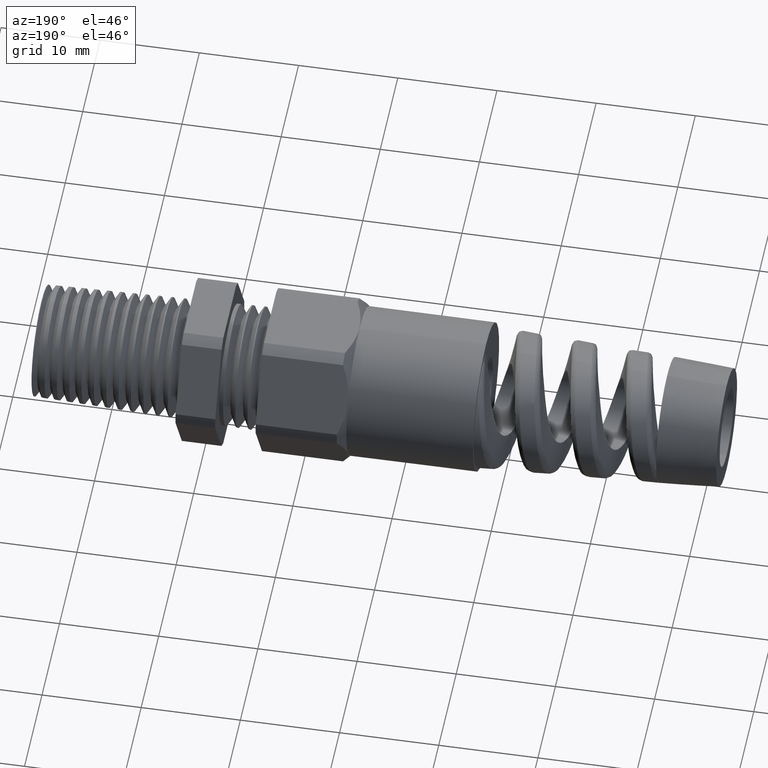
[diagram: clean part render]
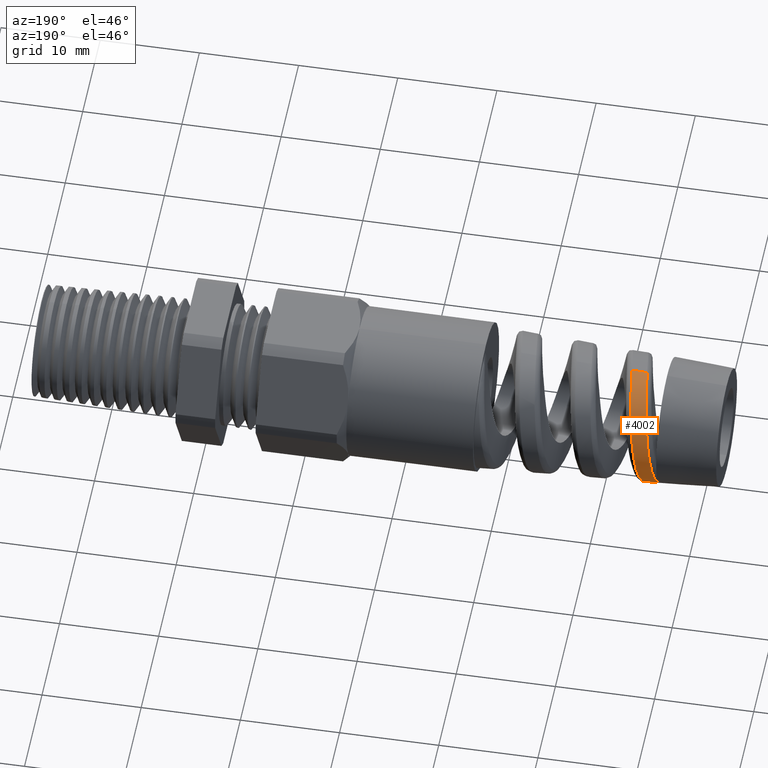
[diagram: same view with one face highlighted and labeled with its STEP entity id]
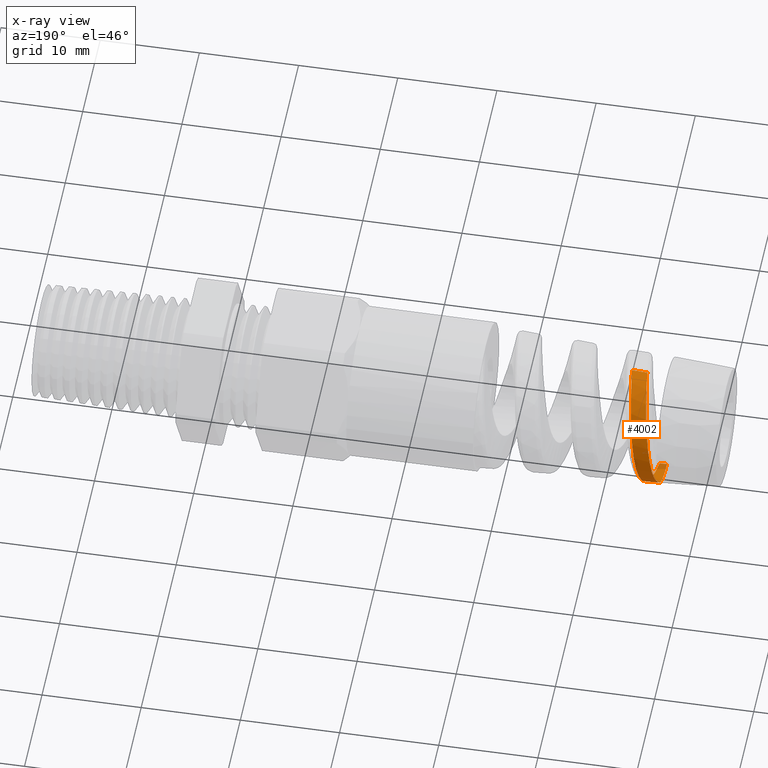
[diagram: x-ray of the same camera — body ghosted, the highlighted face saturated]
A machine part, auxiliary view. The second image highlights one B-rep face of the part: STEP entity #4002.
The next image is the same camera in x-ray: the body ghosted, the highlighted face saturated — about 2% of this face is hidden behind the body in this view.
In plain terms, the highlighted conical surface has half-angle 2.5 deg.
Its self-contained STEP definition (entity closure, byte-faithful):
#2737 = DIRECTION ( 'NONE',  ( 0.0000000000000000000, 0.0000000000000000000, -1.000000000000000000 ) ) ;
#2738 = DIRECTION ( 'NONE',  ( 1.000000000000000000, 0.0000000000000000000, 0.0000000000000000000 ) ) ;
#2739 = CARTESIAN_POINT ( 'NONE',  ( -2.203779527559055000, 0.0000000000000000000, 0.0000000000000000000 ) ) ;
#2740 = AXIS2_PLACEMENT_3D ( 'NONE', #2739, #2738, #2737 ) ;
#2741 = CIRCLE ( 'NONE', #2740, 0.2485543827799998300 ) ;
#2752 = CARTESIAN_POINT ( 'NONE',  ( -2.187213035622172600, 0.2441993029425841600, -0.05143993409245058900 ) ) ;
#2753 = CARTESIAN_POINT ( 'NONE',  ( -2.190535958967617400, 0.2380887566860709600, -0.07430208590741629900 ) ) ;
#2754 = CARTESIAN_POINT ( 'NONE',  ( -2.192184161795037500, 0.2342465710266397600, -0.08541793653908583100 ) ) ;
#2755 = CARTESIAN_POINT ( 'NONE',  ( -2.195471510791315400, 0.2250902436266462900, -0.1069139280671061700 ) ) ;
#2756 = CARTESIAN_POINT ( 'NONE',  ( -2.197113640667939000, 0.2197702627228702600, -0.1173153586273072800 ) ) ;
#2757 = CARTESIAN_POINT ( 'NONE',  ( -2.200427670845417300, 0.2076254943262758900, -0.1374100581047539000 ) ) ;
#2758 = CARTESIAN_POINT ( 'NONE',  ( -2.202104597898551400, 0.2007724287438462900, -0.1471268494720518200 ) ) ;
#2794 = CARTESIAN_POINT ( 'NONE',  ( -2.124862604434597300, -4.491469872103783600E-015, 0.2519999700550522600 ) ) ;
#2795 = CARTESIAN_POINT ( 'NONE',  ( -2.126489364894125400, 0.01168615151431172000, 0.2519289441595031800 ) ) ;
#2796 = DIRECTION ( 'NONE',  ( 0.9990482215818576900, 5.341834311772759500E-018, 0.04361938736533629800 ) ) ;
#2797 = VECTOR ( 'NONE', #2796, 39.37007874015748100 ) ;
#2798 = CARTESIAN_POINT ( 'NONE',  ( -1.139999999999999900, 3.612708057484692000E-017, 0.2949999999999999800 ) ) ;
#2799 = LINE ( 'NONE', #2798, #2797 ) ;
#2804 = CARTESIAN_POINT ( 'NONE',  ( -2.147755639327928900, 0.1527029847878234300, 0.1995490315145043400 ) ) ;
#2805 = CARTESIAN_POINT ( 'NONE',  ( -2.151032487266941700, 0.1705058947885270400, 0.1843745005458386800 ) ) ;
#2806 = CARTESIAN_POINT ( 'NONE',  ( -2.152687327551548800, 0.1789694867704847700, 0.1760740767364564800 ) ) ;
#2807 = CARTESIAN_POINT ( 'NONE',  ( -2.157631256046324900, 0.2024011599423863100, 0.1495816056616086600 ) ) ;
#2808 = CARTESIAN_POINT ( 'NONE',  ( -2.160859313518459100, 0.2152803250508847900, 0.1300952375589155600 ) ) ;
#2809 = CARTESIAN_POINT ( 'NONE',  ( -2.165806668688753200, 0.2304612323092316300, 0.09814700066606656100 ) ) ;
#2810 = CARTESIAN_POINT ( 'NONE',  ( -2.167462285368283200, 0.2347746584912769100, 0.08710725578013377200 ) ) ;
#2814 = CARTESIAN_POINT ( 'NONE',  ( -1.139999999999999900, 0.0000000000000000000, 0.0000000000000000000 ) ) ;
#2815 = AXIS2_PLACEMENT_3D ( 'NONE', #2814, #2818, #2817 ) ;
#2817 = DIRECTION ( 'NONE',  ( 0.0000000000000000000, 0.0000000000000000000, -1.000000000000000000 ) ) ;
#2818 = DIRECTION ( 'NONE',  ( 1.000000000000000000, 0.0000000000000000000, 0.0000000000000000000 ) ) ;
#2819 = CARTESIAN_POINT ( 'NONE',  ( -2.170743381754297400, 0.2417416082006667000, 0.06477778682104677600 ) ) ;
#2820 = CARTESIAN_POINT ( 'NONE',  ( -2.172380132548160000, 0.2444313493304473600, 0.05341510339804867600 ) ) ;
#2821 = CARTESIAN_POINT ( 'NONE',  ( -2.175675771031869000, 0.2482138580107974800, 0.03029579764600870400 ) ) ;
#2822 = CARTESIAN_POINT ( 'NONE',  ( -2.177347779021242300, 0.2493035139535857700, 0.01844516095598532800 ) ) ;
#2823 = CARTESIAN_POINT ( 'NONE',  ( -2.180654596613715400, 0.2497894759478132300, -0.005059584245448274300 ) ) ;
#2824 = CARTESIAN_POINT ( 'NONE',  ( -2.182291655091660200, 0.2492045519470773000, -0.01673391278558179400 ) ) ;
#2825 = CARTESIAN_POINT ( 'NONE',  ( -2.185571362247561700, 0.2464093633746419200, -0.03992400863877127600 ) ) ;
#2839 = CARTESIAN_POINT ( 'NONE',  ( -2.124862604434597300, -4.491469872103783600E-015, 0.2519999700550522600 ) ) ;
#2855 = CONICAL_SURFACE ( 'NONE', #2815, 0.2949999999999999800, 0.04363323129985853500 ) ;
#2856 = FACE_OUTER_BOUND ( 'NONE', #4032, .T. ) ;
#2857 = CARTESIAN_POINT ( 'NONE',  ( -2.128124273006445600, 0.02343772342904414800, 0.2510432488180706100 ) ) ;
#2858 = CARTESIAN_POINT ( 'NONE',  ( -2.131412621646747500, 0.04683437535083068100, 0.2476010540459129000 ) ) ;
#2859 = CARTESIAN_POINT ( 'NONE',  ( -2.133038234399847100, 0.05828279385756416500, 0.2450790113730720600 ) ) ;
#2860 = CARTESIAN_POINT ( 'NONE',  ( -2.136287425823070400, 0.08069290401940816500, 0.2384908461465274400 ) ) ;
#2861 = CARTESIAN_POINT ( 'NONE',  ( -2.137910898845151000, 0.09165457577657404300, 0.2344246113829247800 ) ) ;
#2862 = CARTESIAN_POINT ( 'NONE',  ( -2.141189865094801400, 0.1130760897160382700, 0.2247160145856096100 ) ) ;
#2863 = CARTESIAN_POINT ( 'NONE',  ( -2.142847449849460500, 0.1235403384179158000, 0.2190520701245314300 ) ) ;
#2864 = CARTESIAN_POINT ( 'NONE',  ( -2.146123843167379700, 0.1433099722695278200, 0.2064858934802839800 ) ) ;
#2876 = CARTESIAN_POINT ( 'NONE',  ( -2.064174219170769000, 7.132455621879045500E-017, 0.2546496821792660300 ) ) ;
#2881 = CARTESIAN_POINT ( 'NONE',  ( -2.203779527559055000, 0.1932692645669722700, -0.1562890673492178300 ) ) ;
#2882 = CARTESIAN_POINT ( 'NONE',  ( -2.203779527559055000, 0.1932692645669722700, -0.1562890673492178300 ) ) ;
#2883 = B_SPLINE_CURVE_WITH_KNOTS ( 'NONE', 3,
 ( #2881, #2758, #2757, #2756, #2755, #2754, #2753, #2752, #2825, #2824, #2823, #2822, #2821, #2820, #2819, #2810, #2809, #2808, #2807, #2806, #2805, #2804, #2864, #2863, #2862, #2861, #2860, #2859, #2858, #2857, #2795, #2794 ),
 .UNSPECIFIED., .F., .F.,
 ( 4, 2, 2, 2, 2, 2, 2, 2, 2, 2, 2, 2, 2, 2, 2, 4 ),
 ( 1.226634733346699300E-018, 0.0009106879238882848600, 0.001821375847776568600, 0.002732063771664852100, 0.003642751695553136000, 0.004553439619441418600, 0.005464127543329702500, 0.006374815467217986300, 0.007285503391106270200, 0.009106879238882842300, 0.01001756716277112400, 0.01092825508665940500, 0.01183894301054768700, 0.01274963093443596900, 0.01366031885832425100, 0.01457100678221253400 ),
 .UNSPECIFIED. ) ;
#2935 = LINE ( 'NONE', #2945, #2943 ) ;
#2936 = CARTESIAN_POINT ( 'NONE',  ( -2.203779527559055000, -3.043913292855725100E-017, -0.2485543827799996100 ) ) ;
#2937 = DIRECTION ( 'NONE',  ( 0.9990482215818576900, 0.0000000000000000000, -0.04361938736533629800 ) ) ;
#2943 = VECTOR ( 'NONE', #2937, 39.37007874015748100 ) ;
#2945 = CARTESIAN_POINT ( 'NONE',  ( -1.139999999999999900, 0.0000000000000000000, -0.2949999999999999800 ) ) ;
#4002 = ADVANCED_FACE ( 'NONE', ( #2856 ), #2855, .T. ) ;
#4006 = VERTEX_POINT ( 'NONE', #2839 ) ;
#4007 = ORIENTED_EDGE ( 'NONE', *, *, #4008, .T. ) ;
#4008 = EDGE_CURVE ( 'NONE', #4006, #4030, #2799, .T. ) ;
#4017 = ORIENTED_EDGE ( 'NONE', *, *, #4018, .T. ) ;
#4018 = EDGE_CURVE ( 'NONE', #4019, #4006, #2883, .T. ) ;
#4019 = VERTEX_POINT ( 'NONE', #2882 ) ;
#4030 = VERTEX_POINT ( 'NONE', #2876 ) ;
#4032 = EDGE_LOOP ( 'NONE', ( #4017, #4007, #4065, #4210, #4047 ) ) ;
#4047 = ORIENTED_EDGE ( 'NONE', *, *, #4048, .T. ) ;
#4048 = EDGE_CURVE ( 'NONE', #4067, #4019, #2741, .T. ) ;
#4065 = ORIENTED_EDGE ( 'NONE', *, *, #4209, .T. ) ;
#4066 = EDGE_CURVE ( 'NONE', #4067, #4211, #2935, .T. ) ;
#4067 = VERTEX_POINT ( 'NONE', #2936 ) ;
#4209 = EDGE_CURVE ( 'NONE', #4030, #4211, #5458, .T. ) ;
#4210 = ORIENTED_EDGE ( 'NONE', *, *, #4066, .F. ) ;
#4211 = VERTEX_POINT ( 'NONE', #5459 ) ;
#5409 = CARTESIAN_POINT ( 'NONE',  ( -2.174018610112111700, -3.579899888360381700E-013, -0.2498537724975558000 ) ) ;
#5410 = CARTESIAN_POINT ( 'NONE',  ( -2.171710936331053200, 0.01651353368713806900, -0.2499545277107857200 ) ) ;
#5411 = CARTESIAN_POINT ( 'NONE',  ( -2.169425194539905500, 0.03287636835128453200, -0.2484326806092887800 ) ) ;
#5412 = CARTESIAN_POINT ( 'NONE',  ( -2.165960777286923800, 0.05718551368500587900, -0.2437227390270375600 ) ) ;
#5413 = CARTESIAN_POINT ( 'NONE',  ( -2.164793853819235300, 0.06529170041314154300, -0.2417316963105466100 ) ) ;
#5414 = CARTESIAN_POINT ( 'NONE',  ( -2.162470579479152600, 0.08119439245982082400, -0.2369714545770107700 ) ) ;
#5415 = CARTESIAN_POINT ( 'NONE',  ( -2.161317228200562800, 0.08897151746977904900, -0.2342136427023303300 ) ) ;
#5416 = CARTESIAN_POINT ( 'NONE',  ( -2.157868787863559400, 0.1117930162529132300, -0.2248390606904379600 ) ) ;
#5417 = CARTESIAN_POINT ( 'NONE',  ( -2.155587002889780600, 0.1263325228683667100, -0.2171313612172422500 ) ) ;
#5423 = CARTESIAN_POINT ( 'NONE',  ( -2.150959065031506200, 0.1540083425993434600, -0.1987176433549222000 ) ) ;
#5424 = CARTESIAN_POINT ( 'NONE',  ( -2.148663817197055800, 0.1668303860621522800, -0.1881993110455761100 ) ) ;
#5425 = CARTESIAN_POINT ( 'NONE',  ( -2.145233197070097700, 0.1842745345838511500, -0.1707832695115908400 ) ) ;
#5426 = CARTESIAN_POINT ( 'NONE',  ( -2.144088790696968800, 0.1898074670806872700, -0.1646906616552001900 ) ) ;
#5427 = CARTESIAN_POINT ( 'NONE',  ( -2.141787030565619700, 0.2002994796683153500, -0.1519226741143330200 ) ) ;
#5428 = CARTESIAN_POINT ( 'NONE',  ( -2.140623249594523000, 0.2052827725932763500, -0.1452078723523570800 ) ) ;
#5429 = CARTESIAN_POINT ( 'NONE',  ( -2.137158045207605600, 0.2190916127809221800, -0.1245286023570489900 ) ) ;
#5430 = CARTESIAN_POINT ( 'NONE',  ( -2.134878128818612700, 0.2268275109571278300, -0.1100187796591743000 ) ) ;
#5431 = CARTESIAN_POINT ( 'NONE',  ( -2.130305035604375300, 0.2394170673846554300, -0.07959155812473910100 ) ) ;
#5432 = CARTESIAN_POINT ( 'NONE',  ( -2.127987105210839200, 0.2442820235601277400, -0.06350839708166580700 ) ) ;
#5433 = CARTESIAN_POINT ( 'NONE',  ( -2.123419158862229800, 0.2506720451018127300, -0.03116172130257602300 ) ) ;
#5434 = CARTESIAN_POINT ( 'NONE',  ( -2.121153437311200700, 0.2522699177088282800, -0.01480228578403431800 ) ) ;
#5435 = CARTESIAN_POINT ( 'NONE',  ( -2.117713327255865300, 0.2522491274829312700, 0.01000887071319312900 ) ) ;
#5436 = CARTESIAN_POINT ( 'NONE',  ( -2.116553998658106100, 0.2518297326864968300, 0.01836597189350407500 ) ) ;
#5437 = CARTESIAN_POINT ( 'NONE',  ( -2.114256029815911200, 0.2501837531666204500, 0.03484627329254632400 ) ) ;
#5438 = CARTESIAN_POINT ( 'NONE',  ( -2.113113805141150900, 0.2489612916877677300, 0.04299553891671468300 ) ) ;
#5439 = CARTESIAN_POINT ( 'NONE',  ( -2.109693659330338400, 0.2441228657627281000, 0.06717501047178849000 ) ) ;
#5440 = CARTESIAN_POINT ( 'NONE',  ( -2.107425585596081100, 0.2393467610048715900, 0.08293987169002500800 ) ) ;
#5441 = CARTESIAN_POINT ( 'NONE',  ( -2.102823099416645500, 0.2265731892274975000, 0.1137194302718987900 ) ) ;
#5442 = CARTESIAN_POINT ( 'NONE',  ( -2.100559426244436300, 0.2187721838572652100, 0.1282530377569863200 ) ) ;
#5443 = CARTESIAN_POINT ( 'NONE',  ( -2.097158175922703800, 0.2050726035038604700, 0.1487543803807141700 ) ) ;
#5444 = CARTESIAN_POINT ( 'NONE',  ( -2.096023043232429800, 0.2001691602488799800, 0.1553736744277561800 ) ) ;
#5445 = CARTESIAN_POINT ( 'NONE',  ( -2.093738600833940000, 0.1896758149286514600, 0.1681733843138364700 ) ) ;
#5446 = CARTESIAN_POINT ( 'NONE',  ( -2.092584344380877600, 0.1840582674730602600, 0.1743769350408149500 ) ) ;
#5447 = CARTESIAN_POINT ( 'NONE',  ( -2.089154463521749600, 0.1665072029432110000, 0.1919415084276723500 ) ) ;
#5448 = CARTESIAN_POINT ( 'NONE',  ( -2.086892230926003400, 0.1538066805558886700, 0.2023789969370694800 ) ) ;
#5449 = CARTESIAN_POINT ( 'NONE',  ( -2.082348081117178400, 0.1264428119816409500, 0.2207411615550967900 ) ) ;
#5450 = CARTESIAN_POINT ( 'NONE',  ( -2.080048105826680400, 0.1116392502213440900, 0.2286965166820061100 ) ) ;
#5451 = CARTESIAN_POINT ( 'NONE',  ( -2.075520391190140800, 0.08122848479049263300, 0.2413872360666659600 ) ) ;
#5452 = CARTESIAN_POINT ( 'NONE',  ( -2.073273959267274000, 0.06551459826357845800, 0.2462239197056688400 ) ) ;
#5453 = CARTESIAN_POINT ( 'NONE',  ( -2.069861708561259000, 0.04117990940128371500, 0.2511827916293226100 ) ) ;
#5454 = CARTESIAN_POINT ( 'NONE',  ( -2.068712698197887600, 0.03290719630789257200, 0.2524503427919166900 ) ) ;
#5455 = CARTESIAN_POINT ( 'NONE',  ( -2.066436806036881200, 0.01644438874635074200, 0.2541539288923206900 ) ) ;
#5456 = CARTESIAN_POINT ( 'NONE',  ( -2.065304907240508700, 0.008218948769991789300, 0.2546003152720057700 ) ) ;
#5457 = CARTESIAN_POINT ( 'NONE',  ( -2.064174219170769000, 7.132455621879045500E-017, 0.2546496821792660300 ) ) ;
#5458 = B_SPLINE_CURVE_WITH_KNOTS ( 'NONE', 3,
 ( #5457, #5456, #5455, #5454, #5453, #5452, #5451, #5450, #5449, #5448, #5447, #5446, #5445, #5444, #5443, #5442, #5441, #5440, #5439, #5438, #5437, #5436, #5435, #5434, #5433, #5432, #5431, #5430, #5429, #5428, #5427, #5426, #5425, #5424, #5423, #5417, #5416, #5415, #5414, #5413, #5412, #5411, #5410, #5409 ),
 .UNSPECIFIED., .F., .F.,
 ( 4, 2, 2, 2, 2, 2, 2, 2, 2, 2, 2, 2, 2, 2, 2, 2, 2, 2, 2, 2, 2, 4 ),
 ( 0.1144587373552728900, 0.1150993014679973400, 0.1157398655807217900, 0.1170209938061706900, 0.1183021220316196100, 0.1195832502570685100, 0.1202238143697929600, 0.1208643784825174100, 0.1221455067079663100, 0.1234266349334152100, 0.1240671990461396600, 0.1247077631588641200, 0.1259888913843130200, 0.1272700196097619200, 0.1285511478352108200, 0.1291917119479352700, 0.1298322760606597000, 0.1311134042861086000, 0.1323945325115575000, 0.1330350966242819500, 0.1336756607370063700, 0.1349567889624552800 ),
 .UNSPECIFIED. ) ;
#5459 = CARTESIAN_POINT ( 'NONE',  ( -2.174018610112111700, -3.579899888360381700E-013, -0.2498537724975558000 ) ) ;